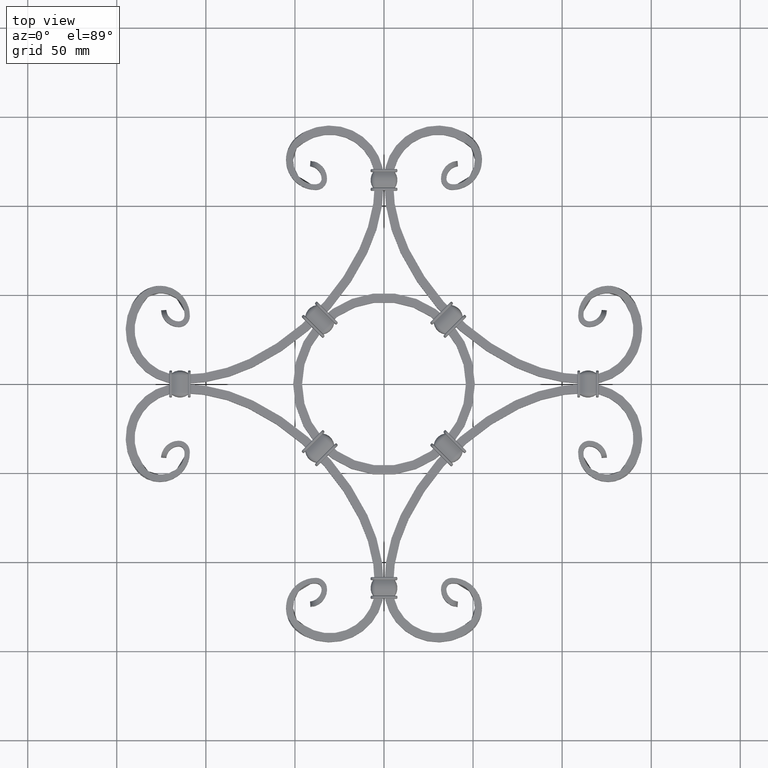
[diagram: clean part render]
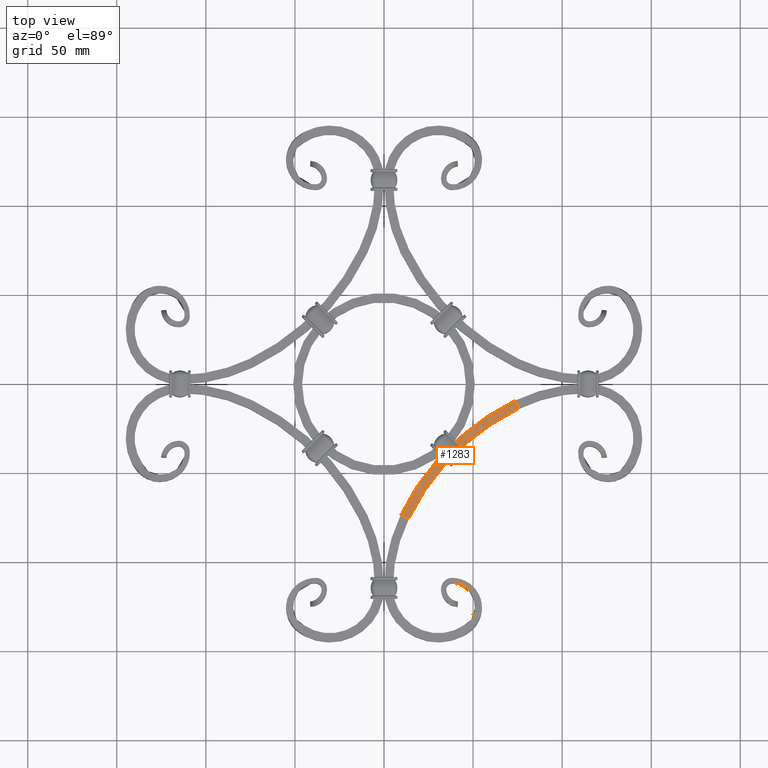
[diagram: same view with one face highlighted and labeled with its STEP entity id]
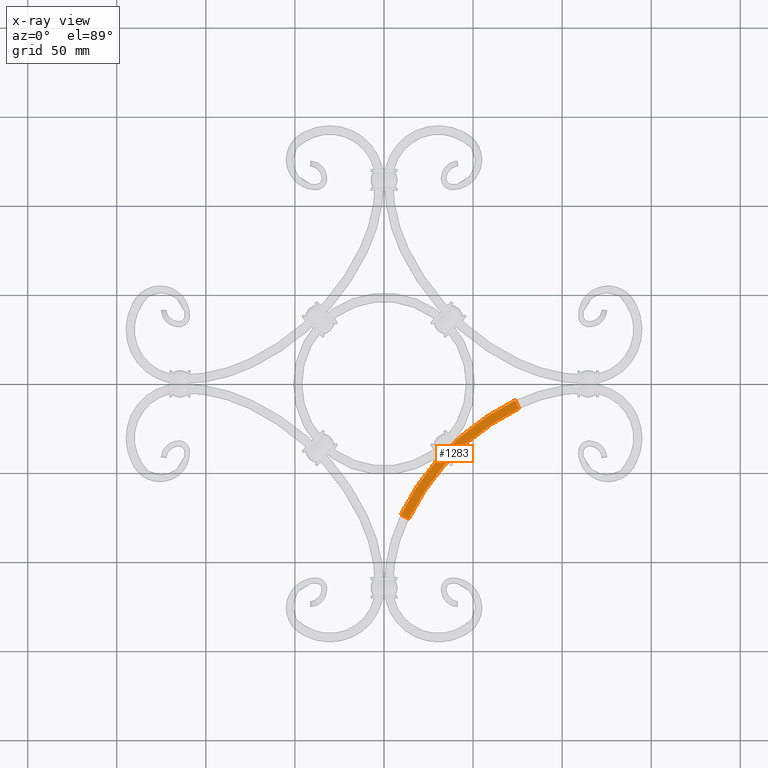
[diagram: x-ray of the same camera — body ghosted, the highlighted face saturated]
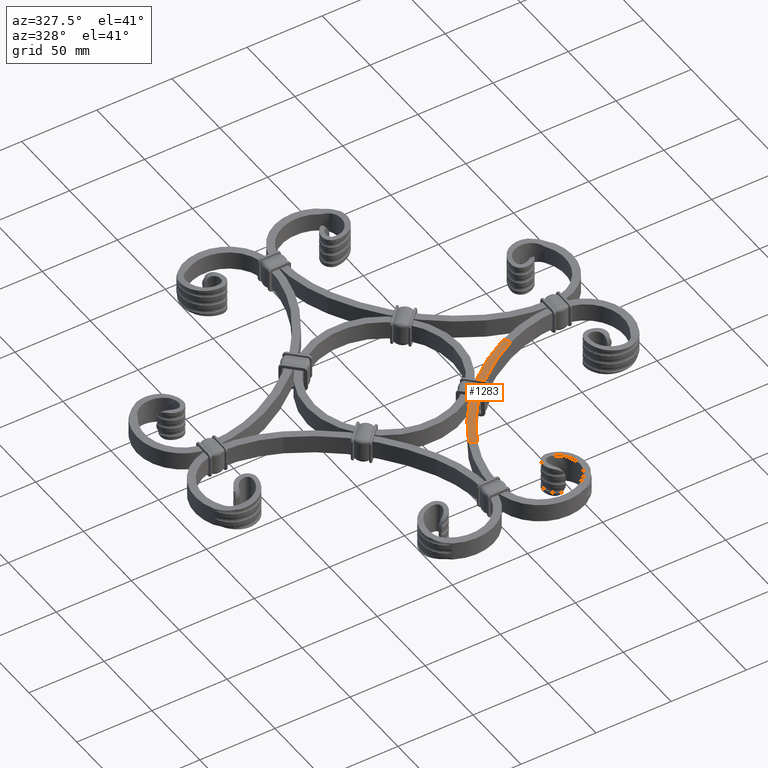
[diagram: same view with one face highlighted and labeled with its STEP entity id]
A machine part, top view. The second image highlights one B-rep face of the part: STEP entity #1283.
The next image is the same camera in x-ray: the body ghosted, the highlighted face saturated — about 0% of this face is hidden behind the body in this view.
A second angle (auxiliary view) of the same face is appended — the face is thin or edge-on in the first view.
In plain terms, the highlighted planar face has unit normal (0, 0, -1).
Its self-contained STEP definition (entity closure, byte-faithful):
#1251 = DIRECTION ( 'NONE',  ( -0.9001969467420303239, 0.4354830158299245468, 0.000000000000000000 ) ) ;
#1283 = ADVANCED_FACE ( 'NONE', ( #40007 ), #14304, .F. ) ;
#1303 = DIRECTION ( 'NONE',  ( 1.000000000000000000, 0.000000000000000000, 0.000000000000000000 ) ) ;
#1499 = DIRECTION ( 'NONE',  ( -0.9001969467420302129, 0.4354830158299246579, 0.000000000000000000 ) ) ;
#3798 = CARTESIAN_POINT ( 'NONE',  ( 73.59507978403630091, -9.381487006248608651, 6.000000000000000000 ) ) ;
#4471 = EDGE_CURVE ( 'NONE', #35389, #29206, #31071, .T. ) ;
#7843 = VERTEX_POINT ( 'NONE', #8831 ) ;
#8831 = CARTESIAN_POINT ( 'NONE',  ( 73.59507978403630091, -9.381487006248601546, 6.000000000000000000 ) ) ;
#13063 = EDGE_CURVE ( 'NONE', #29206, #13505, #51417, .T. ) ;
#13505 = VERTEX_POINT ( 'NONE', #24033 ) ;
#14243 = ORIENTED_EDGE ( 'NONE', *, *, #19037, .F. ) ;
#14304 = PLANE ( 'NONE',  #41946 ) ;
#14797 = EDGE_CURVE ( 'NONE', #35389, #7843, #54238, .T. ) ;
#14990 = ORIENTED_EDGE ( 'NONE', *, *, #4471, .T. ) ;
#15241 = CARTESIAN_POINT ( 'NONE',  ( 133.7695810847829989, -133.7695810847827147, 6.000000000000000000 ) ) ;
#19037 = EDGE_CURVE ( 'NONE', #7843, #13505, #55423, .T. ) ;
#19318 = AXIS2_PLACEMENT_3D ( 'NONE', #15241, #38132, #1251 ) ;
#19755 = DIRECTION ( 'NONE',  ( 0.000000000000000000, 0.000000000000000000, -1.000000000000000000 ) ) ;
#21176 = AXIS2_PLACEMENT_3D ( 'NONE', #42240, #46899, #1499 ) ;
#24033 = CARTESIAN_POINT ( 'NONE',  ( 75.77249486318596894, -13.88247173995874562, 6.000000000000000000 ) ) ;
#24101 = CARTESIAN_POINT ( 'NONE',  ( 9.381487006249189520, -73.59507978403622985, 6.000000000000000000 ) ) ;
#24581 = VECTOR ( 'NONE', #57941, 1000.000000000000114 ) ;
#29206 = VERTEX_POINT ( 'NONE', #37903 ) ;
#29444 = EDGE_LOOP ( 'NONE', ( #41196, #14243, #56801, #14990 ) ) ;
#31071 = LINE ( 'NONE', #37188, #24581 ) ;
#35389 = VERTEX_POINT ( 'NONE', #24101 ) ;
#37188 = CARTESIAN_POINT ( 'NONE',  ( 9.381487006249196625, -73.59507978403622985, 6.000000000000000000 ) ) ;
#37903 = CARTESIAN_POINT ( 'NONE',  ( 13.88247173995935135, -75.77249486318585525, 6.000000000000000000 ) ) ;
#38132 = DIRECTION ( 'NONE',  ( -0.000000000000000000, -0.000000000000000000, -1.000000000000000000 ) ) ;
#40007 = FACE_OUTER_BOUND ( 'NONE', #29444, .T. ) ;
#41196 = ORIENTED_EDGE ( 'NONE', *, *, #13063, .T. ) ;
#41946 = AXIS2_PLACEMENT_3D ( 'NONE', #46714, #19755, #1303 ) ;
#42240 = CARTESIAN_POINT ( 'NONE',  ( 133.7695810847829989, -133.7695810847827147, 6.000000000000000000 ) ) ;
#45523 = DIRECTION ( 'NONE',  ( 0.4354830158299308196, -0.9001969467420272153, 0.000000000000000000 ) ) ;
#46714 = CARTESIAN_POINT ( 'NONE',  ( 9.381487006249196625, -73.59507978403625827, 6.000000000000000000 ) ) ;
#46899 = DIRECTION ( 'NONE',  ( -0.000000000000000000, -0.000000000000000000, -1.000000000000000000 ) ) ;
#51417 = CIRCLE ( 'NONE', #21176, 133.1787558030673040 ) ;
#54238 = CIRCLE ( 'NONE', #19318, 138.1787558030673324 ) ;
#55423 = LINE ( 'NONE', #3798, #58925 ) ;
#56801 = ORIENTED_EDGE ( 'NONE', *, *, #14797, .F. ) ;
#57941 = DIRECTION ( 'NONE',  ( 0.9001969467420305460, -0.4354830158299238807, 0.000000000000000000 ) ) ;
#58925 = VECTOR ( 'NONE', #45523, 1000.000000000000000 ) ;